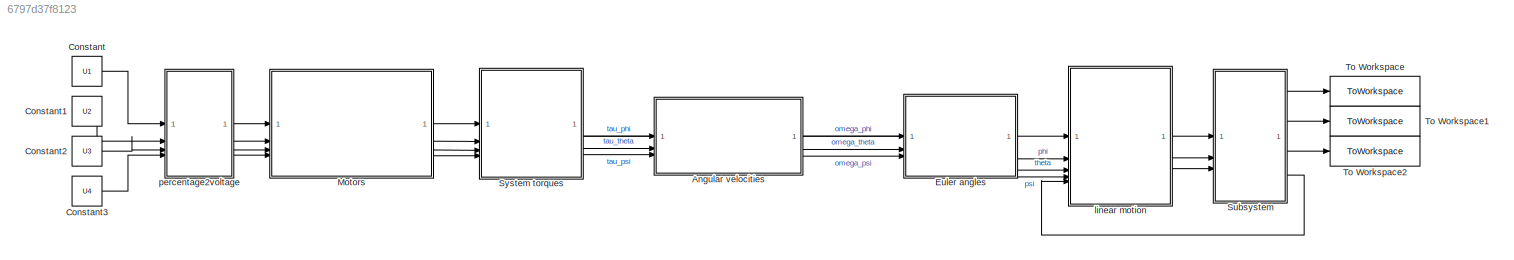
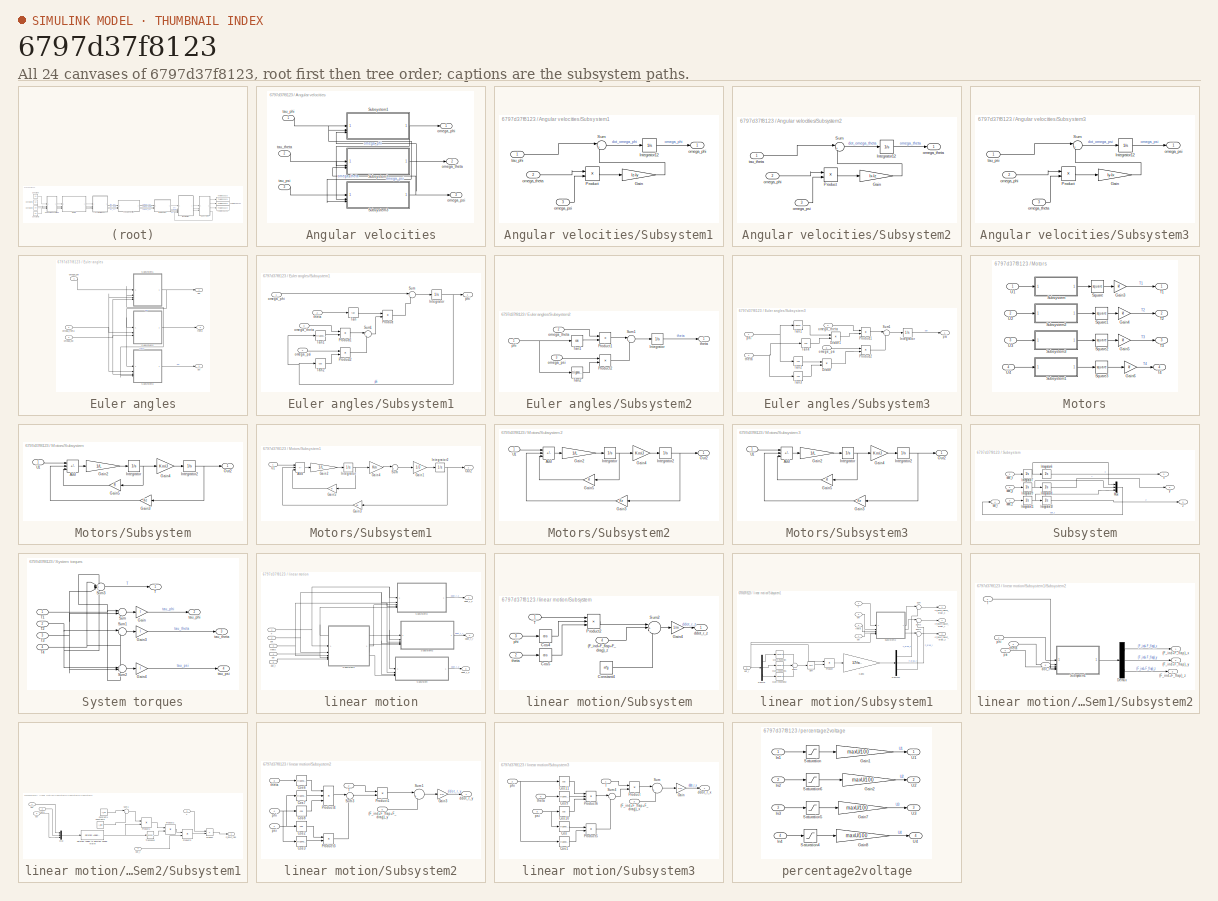
[diagram: thumbnail index - all 24 canvases of the model, root first then tree order]
MODEL slx_6797d37f8123
KIND model
CONFIG AbsTol = auto
CONFIG EnableMultiTasking = off
CONFIG FixedStep = auto
CONFIG MaxStep = auto
CONFIG MinStep = auto
CONFIG RelTol = 1e-3
CONFIG SampleTimeConstraint = Unconstrained
CONFIG SolverName = VariableStepAuto
CONFIG StartTime = 0.0
CONFIG StopTime = time_model
BLOCK [SubSystem] Angular velocities
BLOCK [SubSystem] Angular velocities/Subsystem1
BLOCK [Gain] Angular velocities/Subsystem1/Gain
  Gain = Iz-Iy
BLOCK [Integrator] Angular velocities/Subsystem1/Integrator12
BLOCK [Product] Angular velocities/Subsystem1/Product
BLOCK [Sum] Angular velocities/Subsystem1/Sum
  Inputs = |++
BLOCK [Outport] Angular velocities/Subsystem1/omega_phi
BLOCK [Inport] Angular velocities/Subsystem1/omega_psi
  Port = 3
BLOCK [Inport] Angular velocities/Subsystem1/omega_theta
  Port = 2
BLOCK [Inport] Angular velocities/Subsystem1/tau_phi
BLOCK [SubSystem] Angular velocities/Subsystem2
BLOCK [Gain] Angular velocities/Subsystem2/Gain
  Gain = Ix-Iz
BLOCK [Integrator] Angular velocities/Subsystem2/Integrator12
BLOCK [Product] Angular velocities/Subsystem2/Product
BLOCK [Sum] Angular velocities/Subsystem2/Sum
  Inputs = |++
BLOCK [Inport] Angular velocities/Subsystem2/omega_phi
  Port = 2
BLOCK [Inport] Angular velocities/Subsystem2/omega_psi
  Port = 3
BLOCK [Outport] Angular velocities/Subsystem2/omega_theta
BLOCK [Inport] Angular velocities/Subsystem2/tau_theta
BLOCK [SubSystem] Angular velocities/Subsystem3
BLOCK [Gain] Angular velocities/Subsystem3/Gain
  Gain = Iy-Ix
BLOCK [Integrator] Angular velocities/Subsystem3/Integrator12
BLOCK [Product] Angular velocities/Subsystem3/Product
BLOCK [Sum] Angular velocities/Subsystem3/Sum
  Inputs = |++
BLOCK [Inport] Angular velocities/Subsystem3/omega_phi
  Port = 2
BLOCK [Outport] Angular velocities/Subsystem3/omega_psi
BLOCK [Inport] Angular velocities/Subsystem3/omega_theta
  Port = 3
BLOCK [Inport] Angular velocities/Subsystem3/tau_psi
BLOCK [Outport] Angular velocities/omega_phi
BLOCK [Outport] Angular velocities/omega_psi
  Port = 3
BLOCK [Outport] Angular velocities/omega_theta
  Port = 2
BLOCK [Inport] Angular velocities/tau_phi
BLOCK [Inport] Angular velocities/tau_psi
  Port = 3
BLOCK [Inport] Angular velocities/tau_theta
  Port = 2
BLOCK [Constant] Constant
  Value = U1
BLOCK [Constant] Constant1
  Value = U2
BLOCK [Constant] Constant2
  Value = U3
BLOCK [Constant] Constant3
  Value = U4
BLOCK [SubSystem] Euler angles
BLOCK [SubSystem] Euler angles/Subsystem1
BLOCK [Integrator] Euler angles/Subsystem1/Integrator
BLOCK [Product] Euler angles/Subsystem1/Product
BLOCK [Product] Euler angles/Subsystem1/Product1
BLOCK [Product] Euler angles/Subsystem1/Product2
BLOCK [Sum] Euler angles/Subsystem1/Sum
  Inputs = |++
BLOCK [Sum] Euler angles/Subsystem1/Sum1
  Inputs = |++
BLOCK [Trigonometry] Euler angles/Subsystem1/Tan
  Operator = tan
BLOCK [Trigonometry] Euler angles/Subsystem1/Tan1
BLOCK [Trigonometry] Euler angles/Subsystem1/Tan2
  Operator = cos
BLOCK [Inport] Euler angles/Subsystem1/omega_phi
BLOCK [Inport] Euler angles/Subsystem1/omega_psi
  Port = 4
BLOCK [Inport] Euler angles/Subsystem1/omega_theta
  Port = 3
BLOCK [Outport] Euler angles/Subsystem1/phi
BLOCK [Inport] Euler angles/Subsystem1/theta
  Port = 2
BLOCK [SubSystem] Euler angles/Subsystem2
BLOCK [Integrator] Euler angles/Subsystem2/Integrator
BLOCK [Product] Euler angles/Subsystem2/Product1
BLOCK [Product] Euler angles/Subsystem2/Product2
BLOCK [Sum] Euler angles/Subsystem2/Sum1
  Inputs = |+-
BLOCK [Trigonometry] Euler angles/Subsystem2/Tan1
  Operator = cos
BLOCK [Trigonometry] Euler angles/Subsystem2/Tan2
BLOCK [Inport] Euler angles/Subsystem2/omega_psi
  Port = 3
BLOCK [Inport] Euler angles/Subsystem2/omega_theta
  Port = 2
BLOCK [Inport] Euler angles/Subsystem2/phi
BLOCK [Outport] Euler angles/Subsystem2/theta
BLOCK [SubSystem] Euler angles/Subsystem3
BLOCK [Product] Euler angles/Subsystem3/Divide
  Inputs = */
BLOCK [Product] Euler angles/Subsystem3/Divide1
  Inputs = */
BLOCK [Integrator] Euler angles/Subsystem3/Integrator
BLOCK [Product] Euler angles/Subsystem3/Product1
BLOCK [Product] Euler angles/Subsystem3/Product2
BLOCK [Sum] Euler angles/Subsystem3/Sum1
  Inputs = |++
BLOCK [Trigonometry] Euler angles/Subsystem3/Tan1
BLOCK [Trigonometry] Euler angles/Subsystem3/Tan2
  Operator = cos
BLOCK [Trigonometry] Euler angles/Subsystem3/Tan3
  Operator = cos
BLOCK [Trigonometry] Euler angles/Subsystem3/Tan4
  Operator = cos
BLOCK [Inport] Euler angles/Subsystem3/omega_psi
  Port = 3
BLOCK [Inport] Euler angles/Subsystem3/omega_theta
  Port = 2
BLOCK [Inport] Euler angles/Subsystem3/phi
BLOCK [Outport] Euler angles/Subsystem3/psi
BLOCK [Inport] Euler angles/Subsystem3/theta
  Port = 4
BLOCK [Inport] Euler angles/omega_phi
BLOCK [Inport] Euler angles/omega_psi
  Port = 3
BLOCK [Inport] Euler angles/omega_theta
  Port = 2
BLOCK [Outport] Euler angles/phi
BLOCK [Outport] Euler angles/psi
  Port = 3
BLOCK [Outport] Euler angles/theta
  Port = 2
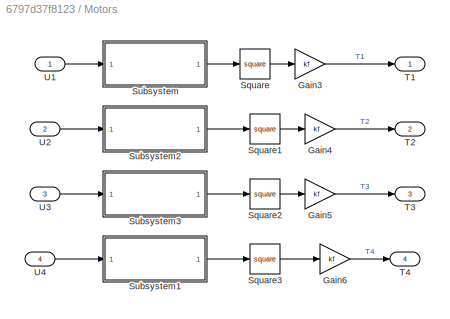
BLOCK [SubSystem] Motors
BLOCK [Gain] Motors/Gain3
  Gain = kf
BLOCK [Gain] Motors/Gain4
  Gain = kf
BLOCK [Gain] Motors/Gain5
  Gain = kf
BLOCK [Gain] Motors/Gain6
  Gain = kf
BLOCK [Math] Motors/Square
  Operator = square
BLOCK [Math] Motors/Square1
  Operator = square
BLOCK [Math] Motors/Square2
  Operator = square
BLOCK [Math] Motors/Square3
  Operator = square
BLOCK [SubSystem] Motors/Subsystem
BLOCK [Sum] Motors/Subsystem/Add
  IconShape = rectangular
  Inputs = +--
BLOCK [Gain] Motors/Subsystem/Gain2
  Gain = 1/L
BLOCK [Gain] Motors/Subsystem/Gain3
  Gain = Ke
BLOCK [Gain] Motors/Subsystem/Gain4
  Gain = Km/J
BLOCK [Gain] Motors/Subsystem/Gain5
  Gain = R
BLOCK [Integrator] Motors/Subsystem/Integrator
BLOCK [Integrator] Motors/Subsystem/Integrator2
BLOCK [Outport] Motors/Subsystem/Out2
BLOCK [Inport] Motors/Subsystem/U1
BLOCK [SubSystem] Motors/Subsystem1
BLOCK [Sum] Motors/Subsystem1/Add
  IconShape = rectangular
  Inputs = +--
BLOCK [Gain] Motors/Subsystem1/Gain1
  Gain = 1/J
BLOCK [Gain] Motors/Subsystem1/Gain2
  Gain = 1/L
BLOCK [Gain] Motors/Subsystem1/Gain3
  Gain = Ke
BLOCK [Gain] Motors/Subsystem1/Gain4
  Gain = Km
BLOCK [Gain] Motors/Subsystem1/Gain5
  Gain = R
BLOCK [Integrator] Motors/Subsystem1/Integrator
BLOCK [Integrator] Motors/Subsystem1/Integrator2
BLOCK [Outport] Motors/Subsystem1/Out2
BLOCK [Sum] Motors/Subsystem1/Sum
  Inputs = |+-
BLOCK [Inport] Motors/Subsystem1/U1
BLOCK [SubSystem] Motors/Subsystem2
BLOCK [Sum] Motors/Subsystem2/Add
  IconShape = rectangular
  Inputs = +--
BLOCK [Gain] Motors/Subsystem2/Gain2
  Gain = 1/L
BLOCK [Gain] Motors/Subsystem2/Gain3
  Gain = Ke
BLOCK [Gain] Motors/Subsystem2/Gain4
  Gain = Km/J
BLOCK [Gain] Motors/Subsystem2/Gain5
  Gain = R
BLOCK [Integrator] Motors/Subsystem2/Integrator
BLOCK [Integrator] Motors/Subsystem2/Integrator2
BLOCK [Outport] Motors/Subsystem2/Out2
BLOCK [Inport] Motors/Subsystem2/U1
BLOCK [SubSystem] Motors/Subsystem3
BLOCK [Sum] Motors/Subsystem3/Add
  IconShape = rectangular
  Inputs = +--
BLOCK [Gain] Motors/Subsystem3/Gain2
  Gain = 1/L
BLOCK [Gain] Motors/Subsystem3/Gain3
  Gain = Ke
BLOCK [Gain] Motors/Subsystem3/Gain4
  Gain = Km/J
BLOCK [Gain] Motors/Subsystem3/Gain5
  Gain = R
BLOCK [Integrator] Motors/Subsystem3/Integrator
BLOCK [Integrator] Motors/Subsystem3/Integrator2
BLOCK [Outport] Motors/Subsystem3/Out2
BLOCK [Inport] Motors/Subsystem3/U1
BLOCK [Outport] Motors/T1
BLOCK [Outport] Motors/T2
  Port = 2
BLOCK [Outport] Motors/T3
  Port = 3
BLOCK [Outport] Motors/T4
  Port = 4
BLOCK [Inport] Motors/U1
BLOCK [Inport] Motors/U2
  Port = 2
BLOCK [Inport] Motors/U3
  Port = 3
BLOCK [Inport] Motors/U4
  Port = 4
BLOCK [SubSystem] Subsystem
BLOCK [Integrator] Subsystem/Integrator10
  InitialCondition = 100
BLOCK [Integrator] Subsystem/Integrator11
BLOCK [Integrator] Subsystem/Integrator6
  InitialCondition = 100
BLOCK [Integrator] Subsystem/Integrator7
BLOCK [Integrator] Subsystem/Integrator8
  InitialCondition = 100
BLOCK [Integrator] Subsystem/Integrator9
BLOCK [Mux] Subsystem/Mux
  DisplayOption = bar
  Inputs = 3
BLOCK [Inport] Subsystem/ddot_x
BLOCK [Inport] Subsystem/ddot_y
  Port = 2
BLOCK [Inport] Subsystem/ddot_z
  Port = 3
BLOCK [Outport] Subsystem/dot_r
  Port = 4
BLOCK [Outport] Subsystem/x
BLOCK [Outport] Subsystem/y
  Port = 2
BLOCK [Outport] Subsystem/z
  Port = 3
BLOCK [SubSystem] System torques
BLOCK [Gain] System torques/Gain
  Gain = l
BLOCK [Gain] System torques/Gain3
  Gain = l
BLOCK [Gain] System torques/Gain4
  Gain = l
BLOCK [Sum] System torques/Sum
  Inputs = |-+
BLOCK [Sum] System torques/Sum1
  Inputs = |-+
BLOCK [Sum] System torques/Sum2
  Inputs = ++--
BLOCK [Sum] System torques/Sum3
  Inputs = ++++
BLOCK [Outport] System torques/T
BLOCK [Inport] System torques/T1
BLOCK [Inport] System torques/T2
  Port = 2
BLOCK [Inport] System torques/T3
  Port = 3
BLOCK [Inport] System torques/T4
  Port = 4
BLOCK [Outport] System torques/tau_phi
  Port = 2
BLOCK [Outport] System torques/tau_psi
  Port = 4
BLOCK [Outport] System torques/tau_theta
  Port = 3
BLOCK [ToWorkspace] To Workspace
  FixptAsFi = on
  MaxDataPoints = inf
  SampleTime = -1
  SaveFormat = Timeseries
  VariableName = x
BLOCK [ToWorkspace] To Workspace1
  FixptAsFi = on
  MaxDataPoints = inf
  SampleTime = -1
  SaveFormat = Timeseries
  VariableName = y
BLOCK [ToWorkspace] To Workspace2
  FixptAsFi = on
  MaxDataPoints = inf
  SampleTime = -1
  SaveFormat = Timeseries
  VariableName = z
BLOCK [SubSystem] linear motion
BLOCK [SubSystem] linear motion/Subsystem
BLOCK [Inport] linear motion/Subsystem/(F_ind+F_flap+F_drag)_z
  Port = 4
BLOCK [Constant] linear motion/Subsystem/Constant4
  Value = m*g
BLOCK [Trigonometry] linear motion/Subsystem/Cos4
  Operator = cos
BLOCK [Trigonometry] linear motion/Subsystem/Cos5
  Operator = cos
BLOCK [Gain] linear motion/Subsystem/Gain4
  Gain = 1/m
BLOCK [Product] linear motion/Subsystem/Product2
  Inputs = 3
BLOCK [Sum] linear motion/Subsystem/Sum2
  Inputs = |+--
BLOCK [Inport] linear motion/Subsystem/T
BLOCK [Outport] linear motion/Subsystem/ddot_r_z
BLOCK [Inport] linear motion/Subsystem/phi
  Port = 3
BLOCK [Inport] linear motion/Subsystem/theta
  Port = 2
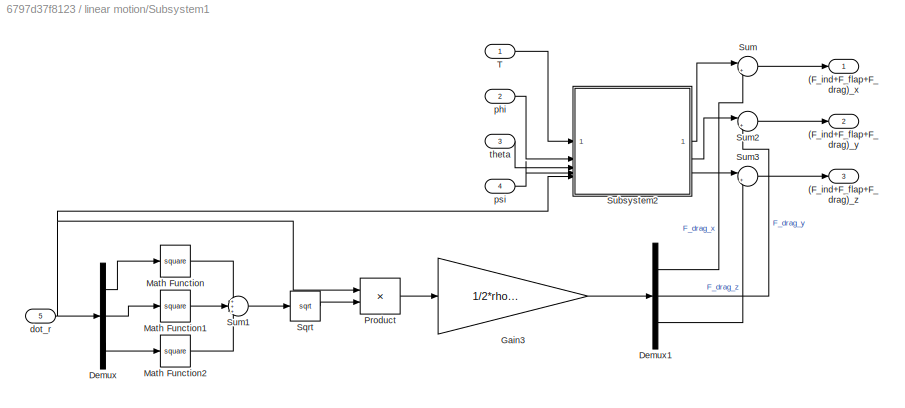
BLOCK [SubSystem] linear motion/Subsystem1
BLOCK [Outport] linear motion/Subsystem1/(F_ind+F_flap+F_drag)_x
BLOCK [Outport] linear motion/Subsystem1/(F_ind+F_flap+F_drag)_y
  Port = 2
BLOCK [Outport] linear motion/Subsystem1/(F_ind+F_flap+F_drag)_z
  Port = 3
BLOCK [Demux] linear motion/Subsystem1/Demux
  Outputs = 3
BLOCK [Demux] linear motion/Subsystem1/Demux1
  Outputs = 3
BLOCK [Gain] linear motion/Subsystem1/Gain3
  Gain = 1/2*rho*C_drag*S
BLOCK [Math] linear motion/Subsystem1/Math Function
  Operator = square
BLOCK [Math] linear motion/Subsystem1/Math Function1
  Operator = square
BLOCK [Math] linear motion/Subsystem1/Math Function2
  Operator = square
BLOCK [Product] linear motion/Subsystem1/Product
BLOCK [Sqrt] linear motion/Subsystem1/Sqrt
BLOCK [SubSystem] linear motion/Subsystem1/Subsystem2
BLOCK [Outport] linear motion/Subsystem1/Subsystem2/(F_ind+F_flap)_x
BLOCK [Outport] linear motion/Subsystem1/Subsystem2/(F_ind+F_flap)_y
  Port = 2
BLOCK [Outport] linear motion/Subsystem1/Subsystem2/(F_ind+F_flap)_z
  Port = 3
BLOCK [Demux] linear motion/Subsystem1/Subsystem2/Demux
  Outputs = 3
BLOCK [SubSystem] linear motion/Subsystem1/Subsystem2/Subsystem1
BLOCK [Constant] linear motion/Subsystem1/Subsystem2/Subsystem1/Constant4
  Value = A_ind
BLOCK [Constant] linear motion/Subsystem1/Subsystem2/Subsystem1/Constant5
  Value = A_flap
BLOCK [Outport] linear motion/Subsystem1/Subsystem2/Subsystem1/F_ind+F_flap
BLOCK [Mux] linear motion/Subsystem1/Subsystem2/Subsystem1/Mux
  DisplayOption = bar
  Inputs = 3
BLOCK [Product] linear motion/Subsystem1/Subsystem2/Subsystem1/Product
BLOCK [Product] linear motion/Subsystem1/Subsystem2/Subsystem1/Product1
  Multiplication = Matrix(*)
BLOCK [Product] linear motion/Subsystem1/Subsystem2/Subsystem1/Product2
  Multiplication = Matrix(*)
BLOCK [Product] linear motion/Subsystem1/Subsystem2/Subsystem1/Product3
  Multiplication = Matrix(*)
BLOCK [Reference] linear motion/Subsystem1/Subsystem2/Subsystem1/Rotation Angles to Direction Cosine Matrix  REF=sharedtransform/Rotation Angles to
Direction Cosine Matrix
  AttributesFormatString = Rotation Order: %<rotationOrder>
  LibrarySourceBlock = aerolibtransform2/Rotation Angles to\nDirection Cosine Matrix
  SourceBlock = sharedtransform/Rotation Angles to\nDirection Cosine Matrix
  SourceType = Ang2DCM
BLOCK [Sum] linear motion/Subsystem1/Subsystem2/Subsystem1/Sum1
  Inputs = |++
BLOCK [Inport] linear motion/Subsystem1/Subsystem2/Subsystem1/T
  Port = 5
BLOCK [Math] linear motion/Subsystem1/Subsystem2/Subsystem1/Transpose
  Operator = transpose
BLOCK [Inport] linear motion/Subsystem1/Subsystem2/Subsystem1/dot_r
  Port = 4
BLOCK [Inport] linear motion/Subsystem1/Subsystem2/Subsystem1/phi
BLOCK [Inport] linear motion/Subsystem1/Subsystem2/Subsystem1/psi
  Port = 3
BLOCK [Inport] linear motion/Subsystem1/Subsystem2/Subsystem1/theta
  Port = 2
BLOCK [Inport] linear motion/Subsystem1/Subsystem2/T
BLOCK [Inport] linear motion/Subsystem1/Subsystem2/dot_r
  Port = 5
BLOCK [Inport] linear motion/Subsystem1/Subsystem2/phi
  Port = 2
BLOCK [Inport] linear motion/Subsystem1/Subsystem2/psi
  Port = 4
BLOCK [Inport] linear motion/Subsystem1/Subsystem2/theta
  Port = 3
BLOCK [Sum] linear motion/Subsystem1/Sum
  Inputs = |++
BLOCK [Sum] linear motion/Subsystem1/Sum1
  Inputs = +++
BLOCK [Sum] linear motion/Subsystem1/Sum2
  Inputs = |++
BLOCK [Sum] linear motion/Subsystem1/Sum3
  Inputs = |++
BLOCK [Inport] linear motion/Subsystem1/T
BLOCK [Inport] linear motion/Subsystem1/dot_r
  Port = 5
BLOCK [Inport] linear motion/Subsystem1/phi
  Port = 2
BLOCK [Inport] linear motion/Subsystem1/psi
  Port = 4
BLOCK [Inport] linear motion/Subsystem1/theta
  Port = 3
BLOCK [SubSystem] linear motion/Subsystem2
BLOCK [Inport] linear motion/Subsystem2/(F_ind+F_flap+F_drag)_y
  Port = 5
BLOCK [Trigonometry] linear motion/Subsystem2/Cos2
  Operator = cos
BLOCK [Trigonometry] linear motion/Subsystem2/Cos3
BLOCK [Trigonometry] linear motion/Subsystem2/Cos6
BLOCK [Trigonometry] linear motion/Subsystem2/Cos7
BLOCK [Trigonometry] linear motion/Subsystem2/Cos8
  Operator = cos
BLOCK [Gain] linear motion/Subsystem2/Gain3
  Gain = 1/m
BLOCK [Product] linear motion/Subsystem2/Product1
BLOCK [Product] linear motion/Subsystem2/Product3
BLOCK [Product] linear motion/Subsystem2/Product4
  Inputs = 3
BLOCK [Sum] linear motion/Subsystem2/Sum1
  Inputs = |+-
BLOCK [Sum] linear motion/Subsystem2/Sum3
  Inputs = |+-
BLOCK [Inport] linear motion/Subsystem2/T
  Port = 2
BLOCK [Outport] linear motion/Subsystem2/ddot_r_y
BLOCK [Inport] linear motion/Subsystem2/phi
  Port = 4
BLOCK [Inport] linear motion/Subsystem2/psi
BLOCK [Inport] linear motion/Subsystem2/theta
  Port = 3
BLOCK [SubSystem] linear motion/Subsystem3
BLOCK [Inport] linear motion/Subsystem3/(F_ind+F_flap+F_drag)_x
  Port = 3
BLOCK [Trigonometry] linear motion/Subsystem3/Cos
BLOCK [Trigonometry] linear motion/Subsystem3/Cos1
BLOCK [Trigonometry] linear motion/Subsystem3/Cos10
  Operator = cos
BLOCK [Trigonometry] linear motion/Subsystem3/Cos11
  Operator = cos
BLOCK [Trigonometry] linear motion/Subsystem3/Cos9
BLOCK [Gain] linear motion/Subsystem3/Gain
  Gain = 1/m
BLOCK [Product] linear motion/Subsystem3/Product
BLOCK [Product] linear motion/Subsystem3/Product5
BLOCK [Product] linear motion/Subsystem3/Product6
  Inputs = 3
BLOCK [Sum] linear motion/Subsystem3/Sum
  Inputs = |+-
BLOCK [Sum] linear motion/Subsystem3/Sum4
  Inputs = |++
BLOCK [Inport] linear motion/Subsystem3/T
BLOCK [Outport] linear motion/Subsystem3/ddot_r_x
BLOCK [Inport] linear motion/Subsystem3/phi
  Port = 2
BLOCK [Inport] linear motion/Subsystem3/psi
  Port = 5
BLOCK [Inport] linear motion/Subsystem3/theta
  Port = 4
BLOCK [Inport] linear motion/T
BLOCK [Outport] linear motion/ddot_r_x
BLOCK [Outport] linear motion/ddot_r_y
  Port = 2
BLOCK [Outport] linear motion/ddot_r_z
  Port = 3
BLOCK [Inport] linear motion/dot_r
  Port = 5
BLOCK [Inport] linear motion/phi
  Port = 2
BLOCK [Inport] linear motion/psi
  Port = 4
BLOCK [Inport] linear motion/theta
  Port = 3
BLOCK [SubSystem] percentage2voltage
BLOCK [Gain] percentage2voltage/Gain1
  Gain = maxU/100
BLOCK [Gain] percentage2voltage/Gain2
  Gain = maxU/100
BLOCK [Gain] percentage2voltage/Gain7
  Gain = maxU/100
BLOCK [Gain] percentage2voltage/Gain8
  Gain = maxU/100
BLOCK [Inport] percentage2voltage/In1
BLOCK [Inport] percentage2voltage/In2
  Port = 2
BLOCK [Inport] percentage2voltage/In3
  Port = 3
BLOCK [Inport] percentage2voltage/In4
  Port = 4
BLOCK [Saturate] percentage2voltage/Saturation
  LowerLimit = -100
  UpperLimit = 100
BLOCK [Saturate] percentage2voltage/Saturation4
  LowerLimit = -100
  UpperLimit = 100
BLOCK [Saturate] percentage2voltage/Saturation5
  LowerLimit = -100
  UpperLimit = 100
BLOCK [Saturate] percentage2voltage/Saturation6
  LowerLimit = -100
  UpperLimit = 100
BLOCK [Outport] percentage2voltage/U1
BLOCK [Outport] percentage2voltage/U2
  Port = 2
BLOCK [Outport] percentage2voltage/U3
  Port = 3
BLOCK [Outport] percentage2voltage/U4
  Port = 4
LINE Angular velocities/Subsystem1/Gain:1 -> Angular velocities/Subsystem1/Sum:2
LINE Angular velocities/Subsystem1/Integrator12:1 -> Angular velocities/Subsystem1/omega_phi:1
LINE Angular velocities/Subsystem1/Product:1 -> Angular velocities/Subsystem1/Gain:1
LINE Angular velocities/Subsystem1/Sum:1 -> Angular velocities/Subsystem1/Integrator12:1
LINE Angular velocities/Subsystem1/omega_psi:1 -> Angular velocities/Subsystem1/Product:2
LINE Angular velocities/Subsystem1/omega_theta:1 -> Angular velocities/Subsystem1/Product:1
LINE Angular velocities/Subsystem1/tau_phi:1 -> Angular velocities/Subsystem1/Sum:1
NET Angular velocities/Subsystem1:1 -> Angular velocities/Subsystem2:2, Angular velocities/Subsystem3:2, Angular velocities/omega_phi:1
LINE Angular velocities/Subsystem2/Gain:1 -> Angular velocities/Subsystem2/Sum:2
LINE Angular velocities/Subsystem2/Integrator12:1 -> Angular velocities/Subsystem2/omega_theta:1
LINE Angular velocities/Subsystem2/Product:1 -> Angular velocities/Subsystem2/Gain:1
LINE Angular velocities/Subsystem2/Sum:1 -> Angular velocities/Subsystem2/Integrator12:1
LINE Angular velocities/Subsystem2/omega_phi:1 -> Angular velocities/Subsystem2/Product:1
LINE Angular velocities/Subsystem2/omega_psi:1 -> Angular velocities/Subsystem2/Product:2
LINE Angular velocities/Subsystem2/tau_theta:1 -> Angular velocities/Subsystem2/Sum:1
NET Angular velocities/Subsystem2:1 -> Angular velocities/Subsystem1:2, Angular velocities/Subsystem3:3, Angular velocities/omega_theta:1
LINE Angular velocities/Subsystem3/Gain:1 -> Angular velocities/Subsystem3/Sum:2
LINE Angular velocities/Subsystem3/Integrator12:1 -> Angular velocities/Subsystem3/omega_psi:1
LINE Angular velocities/Subsystem3/Product:1 -> Angular velocities/Subsystem3/Gain:1
LINE Angular velocities/Subsystem3/Sum:1 -> Angular velocities/Subsystem3/Integrator12:1
LINE Angular velocities/Subsystem3/omega_phi:1 -> Angular velocities/Subsystem3/Product:1
LINE Angular velocities/Subsystem3/omega_theta:1 -> Angular velocities/Subsystem3/Product:2
LINE Angular velocities/Subsystem3/tau_psi:1 -> Angular velocities/Subsystem3/Sum:1
NET Angular velocities/Subsystem3:1 -> Angular velocities/Subsystem1:3, Angular velocities/Subsystem2:3, Angular velocities/omega_psi:1
LINE Angular velocities/tau_phi:1 -> Angular velocities/Subsystem1:1
LINE Angular velocities/tau_psi:1 -> Angular velocities/Subsystem3:1
LINE Angular velocities/tau_theta:1 -> Angular velocities/Subsystem2:1
LINE Angular velocities:1 -> Euler angles:1
LINE Angular velocities:2 -> Euler angles:2
LINE Angular velocities:3 -> Euler angles:3
LINE Constant1:1 -> percentage2voltage:2
LINE Constant2:1 -> percentage2voltage:3
LINE Constant3:1 -> percentage2voltage:4
LINE Constant:1 -> percentage2voltage:1
NET Euler angles/Subsystem1/Integrator:1 -> Euler angles/Subsystem1/Tan1:1, Euler angles/Subsystem1/Tan2:1, Euler angles/Subsystem1/phi:1
LINE Euler angles/Subsystem1/Product1:1 -> Euler angles/Subsystem1/Sum1:1
LINE Euler angles/Subsystem1/Product2:1 -> Euler angles/Subsystem1/Sum1:2
LINE Euler angles/Subsystem1/Product:1 -> Euler angles/Subsystem1/Sum:2
LINE Euler angles/Subsystem1/Sum1:1 -> Euler angles/Subsystem1/Product:2
LINE Euler angles/Subsystem1/Sum:1 -> Euler angles/Subsystem1/Integrator:1
LINE Euler angles/Subsystem1/Tan1:1 -> Euler angles/Subsystem1/Product1:2
LINE Euler angles/Subsystem1/Tan2:1 -> Euler angles/Subsystem1/Product2:2
LINE Euler angles/Subsystem1/Tan:1 -> Euler angles/Subsystem1/Product:1
LINE Euler angles/Subsystem1/omega_phi:1 -> Euler angles/Subsystem1/Sum:1
LINE Euler angles/Subsystem1/omega_psi:1 -> Euler angles/Subsystem1/Product2:1
LINE Euler angles/Subsystem1/omega_theta:1 -> Euler angles/Subsystem1/Product1:1
LINE Euler angles/Subsystem1/theta:1 -> Euler angles/Subsystem1/Tan:1
NET Euler angles/Subsystem1:1 -> Euler angles/Subsystem2:1, Euler angles/Subsystem3:1, Euler angles/phi:1
LINE Euler angles/Subsystem2/Integrator:1 -> Euler angles/Subsystem2/theta:1
LINE Euler angles/Subsystem2/Product1:1 -> Euler angles/Subsystem2/Sum1:1
LINE Euler angles/Subsystem2/Product2:1 -> Euler angles/Subsystem2/Sum1:2
LINE Euler angles/Subsystem2/Sum1:1 -> Euler angles/Subsystem2/Integrator:1
LINE Euler angles/Subsystem2/Tan1:1 -> Euler angles/Subsystem2/Product1:2
LINE Euler angles/Subsystem2/Tan2:1 -> Euler angles/Subsystem2/Product2:2
LINE Euler angles/Subsystem2/omega_psi:1 -> Euler angles/Subsystem2/Product2:1
LINE Euler angles/Subsystem2/omega_theta:1 -> Euler angles/Subsystem2/Product1:1
NET Euler angles/Subsystem2/phi:1 -> Euler angles/Subsystem2/Tan1:1, Euler angles/Subsystem2/Tan2:1
NET Euler angles/Subsystem2:1 -> Euler angles/Subsystem1:2, Euler angles/Subsystem3:4, Euler angles/theta:1
LINE Euler angles/Subsystem3/Divide1:1 -> Euler angles/Subsystem3/Product1:2
LINE Euler angles/Subsystem3/Divide:1 -> Euler angles/Subsystem3/Product2:2
LINE Euler angles/Subsystem3/Integrator:1 -> Euler angles/Subsystem3/psi:1
LINE Euler angles/Subsystem3/Product1:1 -> Euler angles/Subsystem3/Sum1:1
LINE Euler angles/Subsystem3/Product2:1 -> Euler angles/Subsystem3/Sum1:2
LINE Euler angles/Subsystem3/Sum1:1 -> Euler angles/Subsystem3/Integrator:1
LINE Euler angles/Subsystem3/Tan1:1 -> Euler angles/Subsystem3/Divide1:1
LINE Euler angles/Subsystem3/Tan2:1 -> Euler angles/Subsystem3/Divide:1
LINE Euler angles/Subsystem3/Tan3:1 -> Euler angles/Subsystem3/Divide:2
LINE Euler angles/Subsystem3/Tan4:1 -> Euler angles/Subsystem3/Divide1:2
LINE Euler angles/Subsystem3/omega_psi:1 -> Euler angles/Subsystem3/Product2:1
LINE Euler angles/Subsystem3/omega_theta:1 -> Euler angles/Subsystem3/Product1:1
NET Euler angles/Subsystem3/phi:1 -> Euler angles/Subsystem3/Tan1:1, Euler angles/Subsystem3/Tan2:1
NET Euler angles/Subsystem3/theta:1 -> Euler angles/Subsystem3/Tan3:1, Euler angles/Subsystem3/Tan4:1
LINE Euler angles/Subsystem3:1 -> Euler angles/psi:1
LINE Euler angles/omega_phi:1 -> Euler angles/Subsystem1:1
NET Euler angles/omega_psi:1 -> Euler angles/Subsystem1:4, Euler angles/Subsystem2:3, Euler angles/Subsystem3:3
NET Euler angles/omega_theta:1 -> Euler angles/Subsystem1:3, Euler angles/Subsystem2:2, Euler angles/Subsystem3:2
LINE Euler angles:1 -> linear motion:2
LINE Euler angles:2 -> linear motion:3
LINE Euler angles:3 -> linear motion:4
LINE Motors/Gain3:1 -> Motors/T1:1
LINE Motors/Gain4:1 -> Motors/T2:1
LINE Motors/Gain5:1 -> Motors/T3:1
LINE Motors/Gain6:1 -> Motors/T4:1
LINE Motors/Square1:1 -> Motors/Gain4:1
LINE Motors/Square2:1 -> Motors/Gain5:1
LINE Motors/Square3:1 -> Motors/Gain6:1
LINE Motors/Square:1 -> Motors/Gain3:1
LINE Motors/Subsystem/Add:1 -> Motors/Subsystem/Gain2:1
LINE Motors/Subsystem/Gain2:1 -> Motors/Subsystem/Integrator:1
LINE Motors/Subsystem/Gain3:1 -> Motors/Subsystem/Add:2
LINE Motors/Subsystem/Gain4:1 -> Motors/Subsystem/Integrator2:1
LINE Motors/Subsystem/Gain5:1 -> Motors/Subsystem/Add:3
NET Motors/Subsystem/Integrator2:1 -> Motors/Subsystem/Gain3:1, Motors/Subsystem/Out2:1
NET Motors/Subsystem/Integrator:1 -> Motors/Subsystem/Gain4:1, Motors/Subsystem/Gain5:1
LINE Motors/Subsystem/U1:1 -> Motors/Subsystem/Add:1
LINE Motors/Subsystem1/Add:1 -> Motors/Subsystem1/Gain2:1
LINE Motors/Subsystem1/Gain1:1 -> Motors/Subsystem1/Integrator2:1
LINE Motors/Subsystem1/Gain2:1 -> Motors/Subsystem1/Integrator:1
LINE Motors/Subsystem1/Gain3:1 -> Motors/Subsystem1/Add:2
LINE Motors/Subsystem1/Gain4:1 -> Motors/Subsystem1/Sum:1
LINE Motors/Subsystem1/Gain5:1 -> Motors/Subsystem1/Add:3
NET Motors/Subsystem1/Integrator2:1 -> Motors/Subsystem1/Gain3:1, Motors/Subsystem1/Out2:1
NET Motors/Subsystem1/Integrator:1 -> Motors/Subsystem1/Gain4:1, Motors/Subsystem1/Gain5:1
LINE Motors/Subsystem1/Sum:1 -> Motors/Subsystem1/Gain1:1
LINE Motors/Subsystem1/U1:1 -> Motors/Subsystem1/Add:1
LINE Motors/Subsystem1:1 -> Motors/Square3:1
LINE Motors/Subsystem2/Add:1 -> Motors/Subsystem2/Gain2:1
LINE Motors/Subsystem2/Gain2:1 -> Motors/Subsystem2/Integrator:1
LINE Motors/Subsystem2/Gain3:1 -> Motors/Subsystem2/Add:2
LINE Motors/Subsystem2/Gain4:1 -> Motors/Subsystem2/Integrator2:1
LINE Motors/Subsystem2/Gain5:1 -> Motors/Subsystem2/Add:3
NET Motors/Subsystem2/Integrator2:1 -> Motors/Subsystem2/Gain3:1, Motors/Subsystem2/Out2:1
NET Motors/Subsystem2/Integrator:1 -> Motors/Subsystem2/Gain4:1, Motors/Subsystem2/Gain5:1
LINE Motors/Subsystem2/U1:1 -> Motors/Subsystem2/Add:1
LINE Motors/Subsystem2:1 -> Motors/Square1:1
LINE Motors/Subsystem3/Add:1 -> Motors/Subsystem3/Gain2:1
LINE Motors/Subsystem3/Gain2:1 -> Motors/Subsystem3/Integrator:1
LINE Motors/Subsystem3/Gain3:1 -> Motors/Subsystem3/Add:2
LINE Motors/Subsystem3/Gain4:1 -> Motors/Subsystem3/Integrator2:1
LINE Motors/Subsystem3/Gain5:1 -> Motors/Subsystem3/Add:3
NET Motors/Subsystem3/Integrator2:1 -> Motors/Subsystem3/Gain3:1, Motors/Subsystem3/Out2:1
NET Motors/Subsystem3/Integrator:1 -> Motors/Subsystem3/Gain4:1, Motors/Subsystem3/Gain5:1
LINE Motors/Subsystem3/U1:1 -> Motors/Subsystem3/Add:1
LINE Motors/Subsystem3:1 -> Motors/Square2:1
LINE Motors/Subsystem:1 -> Motors/Square:1
LINE Motors/U1:1 -> Motors/Subsystem:1
LINE Motors/U2:1 -> Motors/Subsystem2:1
LINE Motors/U3:1 -> Motors/Subsystem3:1
LINE Motors/U4:1 -> Motors/Subsystem1:1
LINE Motors:1 -> System torques:1
LINE Motors:2 -> System torques:2
LINE Motors:3 -> System torques:3
LINE Motors:4 -> System torques:4
LINE Subsystem/Integrator10:1 -> Subsystem/z:1
NET Subsystem/Integrator11:1 -> Subsystem/Integrator10:1, Subsystem/Mux:3
LINE Subsystem/Integrator6:1 -> Subsystem/x:1
NET Subsystem/Integrator7:1 -> Subsystem/Integrator6:1, Subsystem/Mux:1
LINE Subsystem/Integrator8:1 -> Subsystem/y:1
NET Subsystem/Integrator9:1 -> Subsystem/Integrator8:1, Subsystem/Mux:2
LINE Subsystem/Mux:1 -> Subsystem/dot_r:1
LINE Subsystem/ddot_x:1 -> Subsystem/Integrator7:1
LINE Subsystem/ddot_y:1 -> Subsystem/Integrator9:1
LINE Subsystem/ddot_z:1 -> Subsystem/Integrator11:1
LINE Subsystem:1 -> To Workspace:1
LINE Subsystem:2 -> To Workspace1:1
LINE Subsystem:3 -> To Workspace2:1
LINE Subsystem:4 -> linear motion:5
LINE System torques/Gain3:1 -> System torques/tau_theta:1
LINE System torques/Gain4:1 -> System torques/tau_psi:1
LINE System torques/Gain:1 -> System torques/tau_phi:1
LINE System torques/Sum1:1 -> System torques/Gain3:1
LINE System torques/Sum2:1 -> System torques/Gain4:1
LINE System torques/Sum3:1 -> System torques/T:1
LINE System torques/Sum:1 -> System torques/Gain:1
NET System torques/T1:1 -> System torques/Sum2:4, System torques/Sum3:1, System torques/Sum:1
NET System torques/T2:1 -> System torques/Sum1:1, System torques/Sum2:2, System torques/Sum3:4
NET System torques/T3:1 -> System torques/Sum2:3, System torques/Sum3:3, System torques/Sum:2
NET System torques/T4:1 -> System torques/Sum1:2, System torques/Sum2:1, System torques/Sum3:2
LINE System torques:1 -> linear motion:1
LINE System torques:2 -> Angular velocities:1
LINE System torques:3 -> Angular velocities:2
LINE System torques:4 -> Angular velocities:3
LINE linear motion/Subsystem/(F_ind+F_flap+F_drag)_z:1 -> linear motion/Subsystem/Sum2:2
LINE linear motion/Subsystem/Constant4:1 -> linear motion/Subsystem/Sum2:3
LINE linear motion/Subsystem/Cos4:1 -> linear motion/Subsystem/Product2:2
LINE linear motion/Subsystem/Cos5:1 -> linear motion/Subsystem/Product2:3
LINE linear motion/Subsystem/Gain4:1 -> linear motion/Subsystem/ddot_r_z:1
LINE linear motion/Subsystem/Product2:1 -> linear motion/Subsystem/Sum2:1
LINE linear motion/Subsystem/Sum2:1 -> linear motion/Subsystem/Gain4:1
LINE linear motion/Subsystem/T:1 -> linear motion/Subsystem/Product2:1
LINE linear motion/Subsystem/phi:1 -> linear motion/Subsystem/Cos4:1
LINE linear motion/Subsystem/theta:1 -> linear motion/Subsystem/Cos5:1
LINE linear motion/Subsystem1/Demux1:1 -> linear motion/Subsystem1/Sum:2
LINE linear motion/Subsystem1/Demux1:2 -> linear motion/Subsystem1/Sum2:2
LINE linear motion/Subsystem1/Demux1:3 -> linear motion/Subsystem1/Sum3:2
LINE linear motion/Subsystem1/Demux:1 -> linear motion/Subsystem1/Math Function:1
LINE linear motion/Subsystem1/Demux:2 -> linear motion/Subsystem1/Math Function1:1
LINE linear motion/Subsystem1/Demux:3 -> linear motion/Subsystem1/Math Function2:1
LINE linear motion/Subsystem1/Gain3:1 -> linear motion/Subsystem1/Demux1:1
LINE linear motion/Subsystem1/Math Function1:1 -> linear motion/Subsystem1/Sum1:2
LINE linear motion/Subsystem1/Math Function2:1 -> linear motion/Subsystem1/Sum1:3
LINE linear motion/Subsystem1/Math Function:1 -> linear motion/Subsystem1/Sum1:1
LINE linear motion/Subsystem1/Product:1 -> linear motion/Subsystem1/Gain3:1
LINE linear motion/Subsystem1/Sqrt:1 -> linear motion/Subsystem1/Product:2
LINE linear motion/Subsystem1/Subsystem2/Demux:1 -> linear motion/Subsystem1/Subsystem2/(F_ind+F_flap)_x:1
LINE linear motion/Subsystem1/Subsystem2/Demux:2 -> linear motion/Subsystem1/Subsystem2/(F_ind+F_flap)_y:1
LINE linear motion/Subsystem1/Subsystem2/Demux:3 -> linear motion/Subsystem1/Subsystem2/(F_ind+F_flap)_z:1
LINE linear motion/Subsystem1/Subsystem2/Subsystem1/Constant4:1 -> linear motion/Subsystem1/Subsystem2/Subsystem1/Sum1:1
LINE linear motion/Subsystem1/Subsystem2/Subsystem1/Constant5:1 -> linear motion/Subsystem1/Subsystem2/Subsystem1/Sum1:2
LINE linear motion/Subsystem1/Subsystem2/Subsystem1/Mux:1 -> linear motion/Subsystem1/Subsystem2/Subsystem1/Rotation Angles to Direction Cosine Matrix:1
LINE linear motion/Subsystem1/Subsystem2/Subsystem1/Product1:1 -> linear motion/Subsystem1/Subsystem2/Subsystem1/Product2:1
LINE linear motion/Subsystem1/Subsystem2/Subsystem1/Product2:1 -> linear motion/Subsystem1/Subsystem2/Subsystem1/Product3:1
LINE linear motion/Subsystem1/Subsystem2/Subsystem1/Product3:1 -> linear motion/Subsystem1/Subsystem2/Subsystem1/Product:2
LINE linear motion/Subsystem1/Subsystem2/Subsystem1/Product:1 -> linear motion/Subsystem1/Subsystem2/Subsystem1/F_ind+F_flap:1
NET linear motion/Subsystem1/Subsystem2/Subsystem1/Rotation Angles to Direction Cosine Matrix:1 -> linear motion/Subsystem1/Subsystem2/Subsystem1/Product1:2, linear motion/Subsystem1/Subsystem2/Subsystem1/Transpose:1
LINE linear motion/Subsystem1/Subsystem2/Subsystem1/Sum1:1 -> linear motion/Subsystem1/Subsystem2/Subsystem1/Product1:1
LINE linear motion/Subsystem1/Subsystem2/Subsystem1/T:1 -> linear motion/Subsystem1/Subsystem2/Subsystem1/Product:1
LINE linear motion/Subsystem1/Subsystem2/Subsystem1/Transpose:1 -> linear motion/Subsystem1/Subsystem2/Subsystem1/Product2:2
LINE linear motion/Subsystem1/Subsystem2/Subsystem1/dot_r:1 -> linear motion/Subsystem1/Subsystem2/Subsystem1/Product3:2
LINE linear motion/Subsystem1/Subsystem2/Subsystem1/phi:1 -> linear motion/Subsystem1/Subsystem2/Subsystem1/Mux:1
LINE linear motion/Subsystem1/Subsystem2/Subsystem1/psi:1 -> linear motion/Subsystem1/Subsystem2/Subsystem1/Mux:3
LINE linear motion/Subsystem1/Subsystem2/Subsystem1/theta:1 -> linear motion/Subsystem1/Subsystem2/Subsystem1/Mux:2
LINE linear motion/Subsystem1/Subsystem2/Subsystem1:1 -> linear motion/Subsystem1/Subsystem2/Demux:1
LINE linear motion/Subsystem1/Subsystem2/T:1 -> linear motion/Subsystem1/Subsystem2/Subsystem1:5
LINE linear motion/Subsystem1/Subsystem2/dot_r:1 -> linear motion/Subsystem1/Subsystem2/Subsystem1:4
LINE linear motion/Subsystem1/Subsystem2/phi:1 -> linear motion/Subsystem1/Subsystem2/Subsystem1:1
LINE linear motion/Subsystem1/Subsystem2/psi:1 -> linear motion/Subsystem1/Subsystem2/Subsystem1:3
LINE linear motion/Subsystem1/Subsystem2/theta:1 -> linear motion/Subsystem1/Subsystem2/Subsystem1:2
LINE linear motion/Subsystem1/Subsystem2:1 -> linear motion/Subsystem1/Sum:1
LINE linear motion/Subsystem1/Subsystem2:2 -> linear motion/Subsystem1/Sum2:1
LINE linear motion/Subsystem1/Subsystem2:3 -> linear motion/Subsystem1/Sum3:1
LINE linear motion/Subsystem1/Sum1:1 -> linear motion/Subsystem1/Sqrt:1
LINE linear motion/Subsystem1/Sum2:1 -> linear motion/Subsystem1/(F_ind+F_flap+F_drag)_y:1
LINE linear motion/Subsystem1/Sum3:1 -> linear motion/Subsystem1/(F_ind+F_flap+F_drag)_z:1
LINE linear motion/Subsystem1/Sum:1 -> linear motion/Subsystem1/(F_ind+F_flap+F_drag)_x:1
LINE linear motion/Subsystem1/T:1 -> linear motion/Subsystem1/Subsystem2:1
NET linear motion/Subsystem1/dot_r:1 -> linear motion/Subsystem1/Demux:1, linear motion/Subsystem1/Product:1, linear motion/Subsystem1/Subsystem2:5
LINE linear motion/Subsystem1/phi:1 -> linear motion/Subsystem1/Subsystem2:2
LINE linear motion/Subsystem1/psi:1 -> linear motion/Subsystem1/Subsystem2:4
LINE linear motion/Subsystem1/theta:1 -> linear motion/Subsystem1/Subsystem2:3
LINE linear motion/Subsystem1:1 -> linear motion/Subsystem3:3
LINE linear motion/Subsystem1:2 -> linear motion/Subsystem2:5
LINE linear motion/Subsystem1:3 -> linear motion/Subsystem:4
LINE linear motion/Subsystem2/(F_ind+F_flap+F_drag)_y:1 -> linear motion/Subsystem2/Sum1:2
LINE linear motion/Subsystem2/Cos2:1 -> linear motion/Subsystem2/Product3:1
LINE linear motion/Subsystem2/Cos3:1 -> linear motion/Subsystem2/Product3:2
LINE linear motion/Subsystem2/Cos6:1 -> linear motion/Subsystem2/Product4:1
LINE linear motion/Subsystem2/Cos7:1 -> linear motion/Subsystem2/Product4:2
LINE linear motion/Subsystem2/Cos8:1 -> linear motion/Subsystem2/Product4:3
LINE linear motion/Subsystem2/Gain3:1 -> linear motion/Subsystem2/ddot_r_y:1
LINE linear motion/Subsystem2/Product1:1 -> linear motion/Subsystem2/Sum1:1
LINE linear motion/Subsystem2/Product3:1 -> linear motion/Subsystem2/Sum3:2
LINE linear motion/Subsystem2/Product4:1 -> linear motion/Subsystem2/Sum3:1
LINE linear motion/Subsystem2/Sum1:1 -> linear motion/Subsystem2/Gain3:1
LINE linear motion/Subsystem2/Sum3:1 -> linear motion/Subsystem2/Product1:2
LINE linear motion/Subsystem2/T:1 -> linear motion/Subsystem2/Product1:1
NET linear motion/Subsystem2/phi:1 -> linear motion/Subsystem2/Cos3:1, linear motion/Subsystem2/Cos8:1
NET linear motion/Subsystem2/psi:1 -> linear motion/Subsystem2/Cos2:1, linear motion/Subsystem2/Cos7:1
LINE linear motion/Subsystem2/theta:1 -> linear motion/Subsystem2/Cos6:1
LINE linear motion/Subsystem2:1 -> linear motion/ddot_r_y:1
LINE linear motion/Subsystem3/(F_ind+F_flap+F_drag)_x:1 -> linear motion/Subsystem3/Sum:2
LINE linear motion/Subsystem3/Cos10:1 -> linear motion/Subsystem3/Product6:3
LINE linear motion/Subsystem3/Cos11:1 -> linear motion/Subsystem3/Product6:1
LINE linear motion/Subsystem3/Cos1:1 -> linear motion/Subsystem3/Product5:2
LINE linear motion/Subsystem3/Cos9:1 -> linear motion/Subsystem3/Product6:2
LINE linear motion/Subsystem3/Cos:1 -> linear motion/Subsystem3/Product5:1
LINE linear motion/Subsystem3/Gain:1 -> linear motion/Subsystem3/ddot_r_x:1
LINE linear motion/Subsystem3/Product5:1 -> linear motion/Subsystem3/Sum4:2
LINE linear motion/Subsystem3/Product6:1 -> linear motion/Subsystem3/Sum4:1
LINE linear motion/Subsystem3/Product:1 -> linear motion/Subsystem3/Sum:1
LINE linear motion/Subsystem3/Sum4:1 -> linear motion/Subsystem3/Product:2
LINE linear motion/Subsystem3/Sum:1 -> linear motion/Subsystem3/Gain:1
LINE linear motion/Subsystem3/T:1 -> linear motion/Subsystem3/Product:1
NET linear motion/Subsystem3/phi:1 -> linear motion/Subsystem3/Cos11:1, linear motion/Subsystem3/Cos1:1
NET linear motion/Subsystem3/psi:1 -> linear motion/Subsystem3/Cos10:1, linear motion/Subsystem3/Cos:1
LINE linear motion/Subsystem3/theta:1 -> linear motion/Subsystem3/Cos9:1
LINE linear motion/Subsystem3:1 -> linear motion/ddot_r_x:1
LINE linear motion/Subsystem:1 -> linear motion/ddot_r_z:1
NET linear motion/T:1 -> linear motion/Subsystem1:1, linear motion/Subsystem2:2, linear motion/Subsystem3:1, linear motion/Subsystem:1
LINE linear motion/dot_r:1 -> linear motion/Subsystem1:5
NET linear motion/phi:1 -> linear motion/Subsystem1:2, linear motion/Subsystem2:4, linear motion/Subsystem3:2, linear motion/Subsystem:3
NET linear motion/psi:1 -> linear motion/Subsystem1:4, linear motion/Subsystem2:1, linear motion/Subsystem3:5
NET linear motion/theta:1 -> linear motion/Subsystem1:3, linear motion/Subsystem2:3, linear motion/Subsystem3:4, linear motion/Subsystem:2
LINE linear motion:1 -> Subsystem:1
LINE linear motion:2 -> Subsystem:2
LINE linear motion:3 -> Subsystem:3
LINE percentage2voltage/Gain1:1 -> percentage2voltage/U1:1
LINE percentage2voltage/Gain2:1 -> percentage2voltage/U2:1
LINE percentage2voltage/Gain7:1 -> percentage2voltage/U3:1
LINE percentage2voltage/Gain8:1 -> percentage2voltage/U4:1
LINE percentage2voltage/In1:1 -> percentage2voltage/Saturation:1
LINE percentage2voltage/In2:1 -> percentage2voltage/Saturation6:1
LINE percentage2voltage/In3:1 -> percentage2voltage/Saturation5:1
LINE percentage2voltage/In4:1 -> percentage2voltage/Saturation4:1
LINE percentage2voltage/Saturation4:1 -> percentage2voltage/Gain8:1
LINE percentage2voltage/Saturation5:1 -> percentage2voltage/Gain7:1
LINE percentage2voltage/Saturation6:1 -> percentage2voltage/Gain2:1
LINE percentage2voltage/Saturation:1 -> percentage2voltage/Gain1:1
LINE percentage2voltage:1 -> Motors:1
LINE percentage2voltage:2 -> Motors:2
LINE percentage2voltage:3 -> Motors:3
LINE percentage2voltage:4 -> Motors:4
note: NET lines group one-source signal fan-out (src -> all destinations, sorted); 1:1 wires keep LINE
